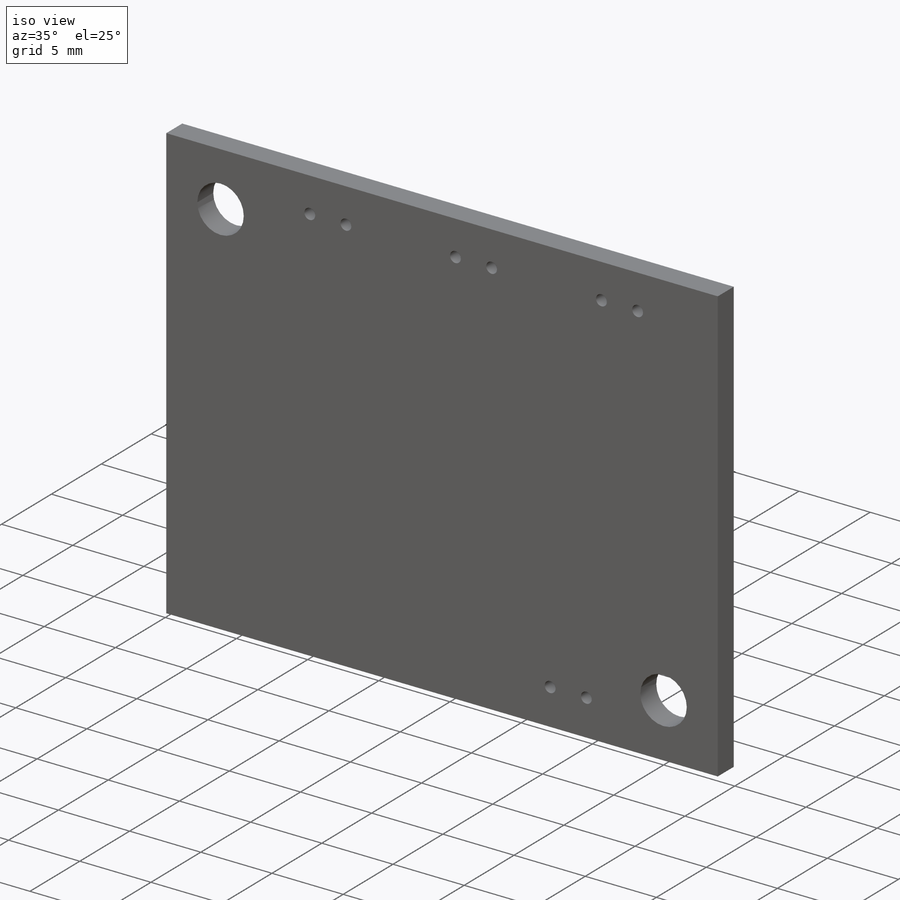
[diagram: iso view]
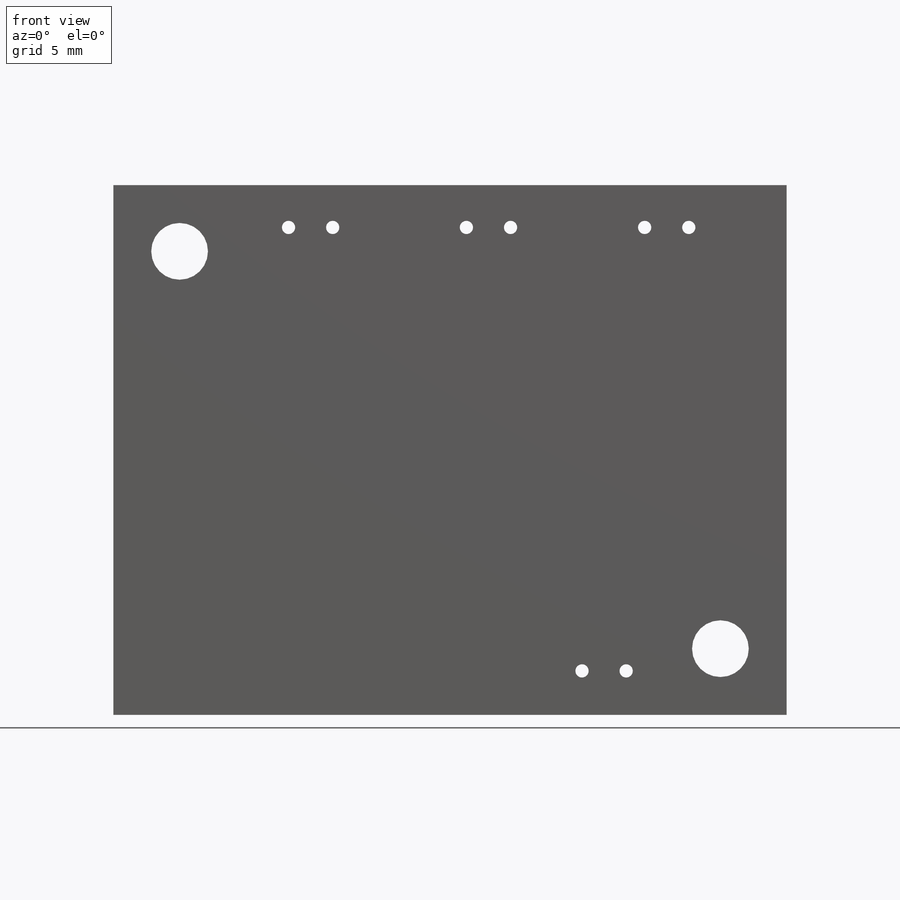
[diagram: front view]
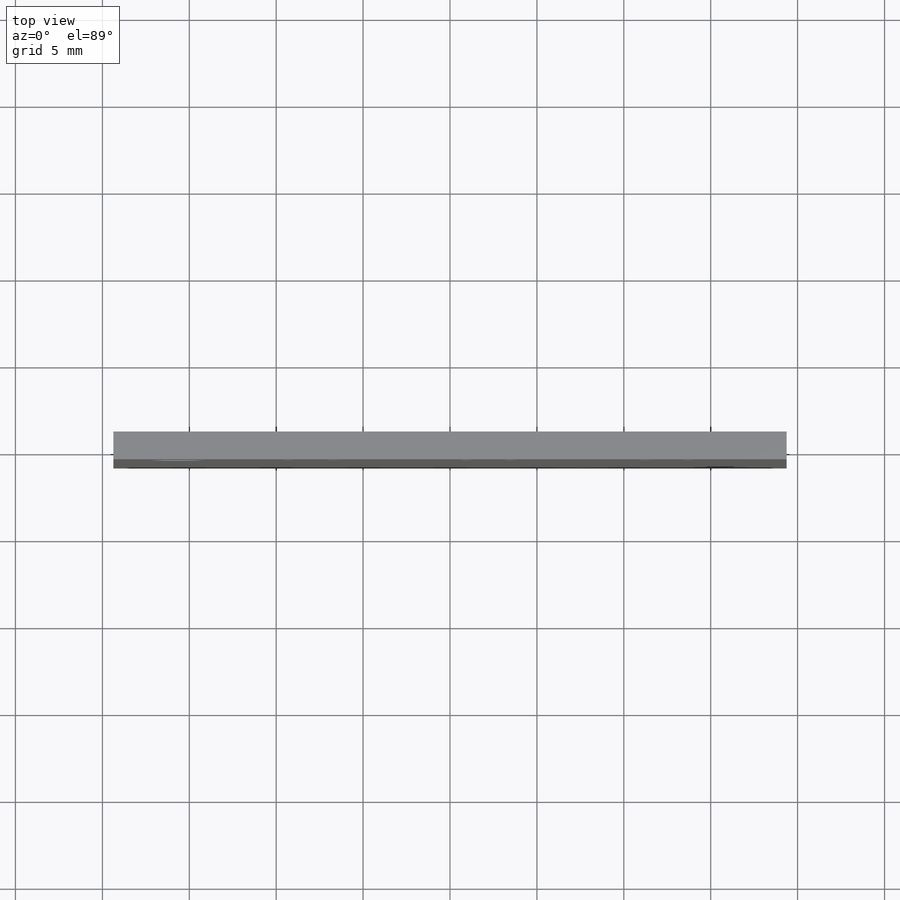
[diagram: top view]
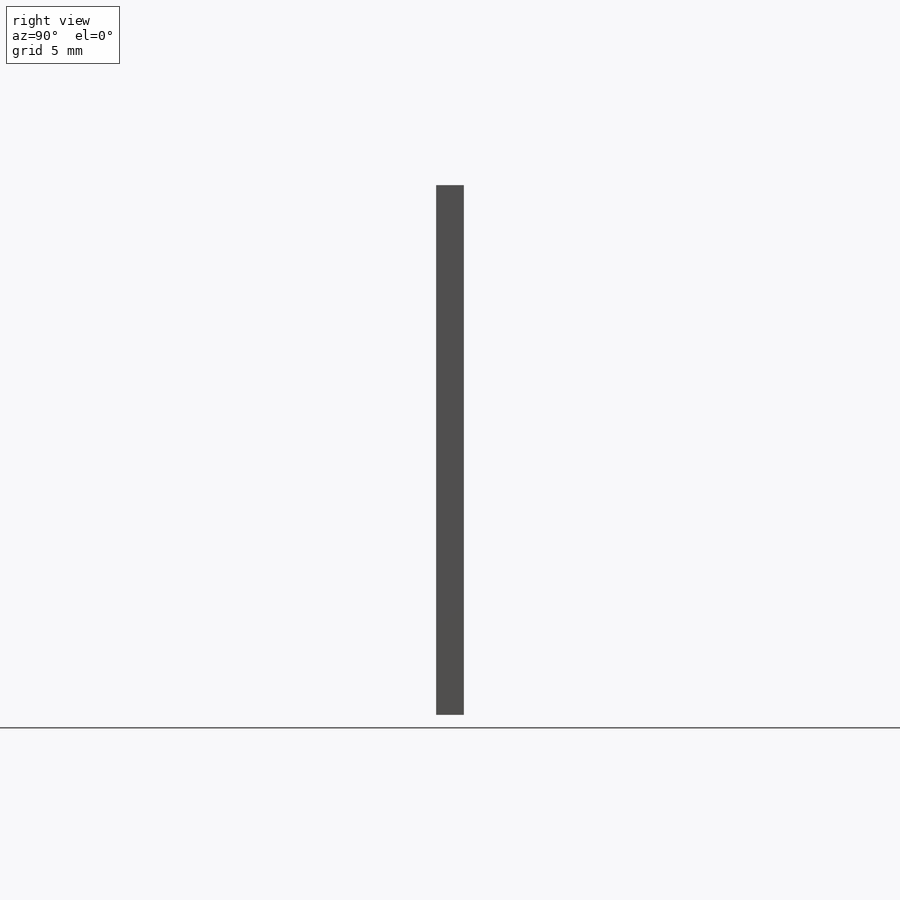
[diagram: right view]
SOLIDWORKS PART (.sldprt)
format: sldprt  version: not decoded by parser v0  size: 328,192 bytes
history: native  units: mm
features: sketch x5, material x1, extrude x1, hole x1, cut_extrude x1 (+14 scaffold rows collapsed)
feature tree (23):
  scaffold x14  (default folders/planes/origin — collapsed)
  material  "Material <not specified>"
  sketch  "Sketch1"  dims[D1=38.735mm D2=30.48mm]
  extrude  "Boss-Extrude1"  Depth=1.6mm
  hole  "#4 Clearance Hole1"  Diameter=3.2639mm Depth=10.922mm
  sketch  "Sketch3"  dims[D1=3.81mm D2=3.81mm D3=34.925mm D4=26.67mm]
  sketch  "Sketch2"  dims[hole-wizard template sketch: 47 standard entries collapsed; hole parameters kept: c15.Hole Depth=10.922mm c15.D3=~14.816244mm c15.Drill Angle=118.0deg]
  sketch  "Sketch5"  dims[D1=2.54mm D2=2.54mm D3=2.54mm D4=2.54mm]
  sketch  "Sketch6"  dims[D1=0.762mm]
  cut_extrude  "Cut-Extrude1"  [1 undecoded]
decode coverage: 7 of 8 modeling features carry decoded parameters
note: ~ marks probable driven/reference dimensions
note: 1 parameter value undecoded
note: suppression state not decoded; provenance and decode notes live in map.json
